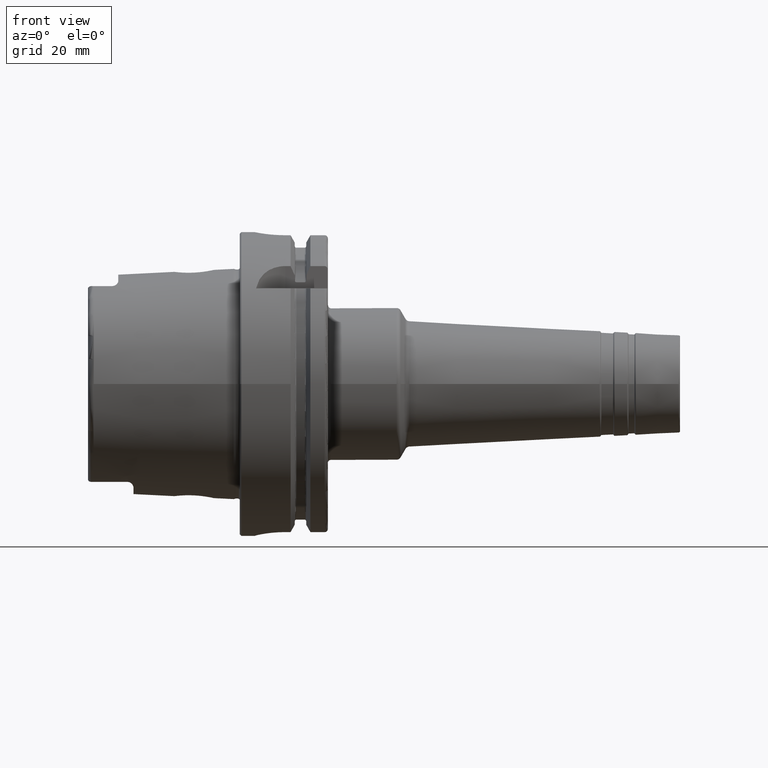
[diagram: clean part render]
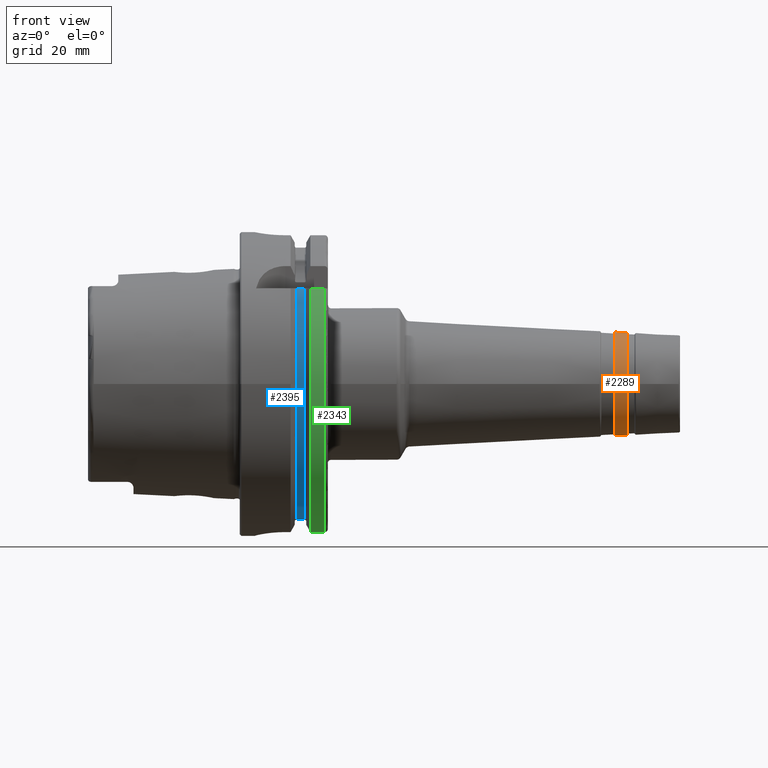
[diagram: same view with three faces highlighted in distinct colors, each labeled with its STEP entity id]
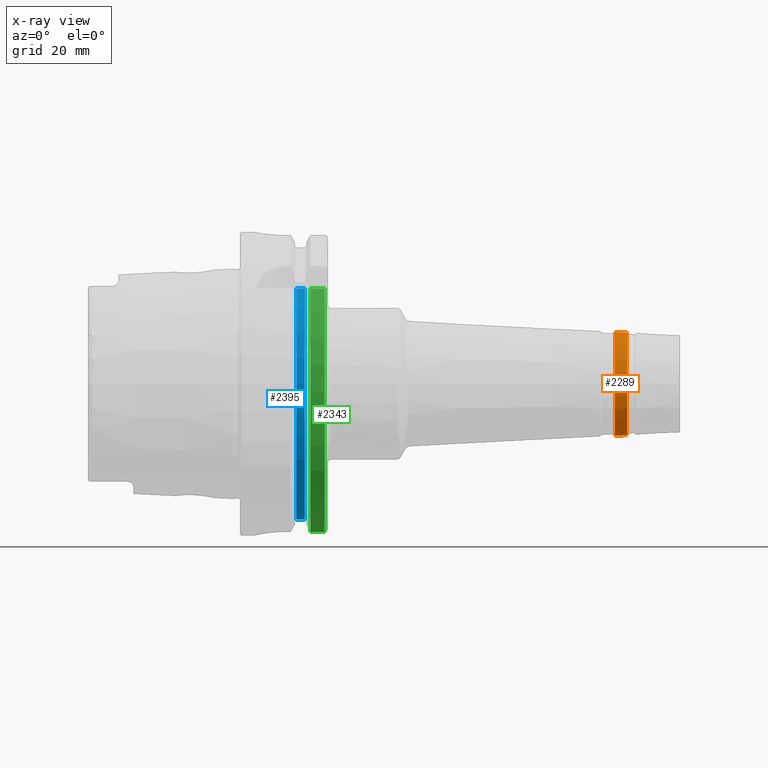
[diagram: x-ray of the same camera — body ghosted, the three highlighted faces saturated]
A machine part, front view with three faces highlighted in distinct colors.
The next image is the same camera in x-ray (body ghosted, the three faces saturated) — at least one of them is partly hidden behind the body in this view.
Their STEP definitions:

[orange] entity #2289 — the highlighted conical surface has half-angle 3 deg.
#196=LINE('',#3666,#308);
#308=VECTOR('',#2936,17.0202570867172);
#410=CONICAL_SURFACE('',#2508,17.0202570867172,0.0523598775598303);
#448=FACE_OUTER_BOUND('',#585,.T.);
#585=EDGE_LOOP('',(#1631,#1632,#1633,#1634,#1635,#1636));
#765=CIRCLE('',#2506,16.9166117566925);
#766=CIRCLE('',#2507,16.9166117566925);
#767=CIRCLE('',#2509,17.1239024167419);
#768=CIRCLE('',#2510,17.1239024167419);
#943=VERTEX_POINT('',#3659);
#944=VERTEX_POINT('',#3661);
#945=VERTEX_POINT('',#3665);
#946=VERTEX_POINT('',#3667);
#1204=EDGE_CURVE('',#943,#944,#765,.T.);
#1205=EDGE_CURVE('',#944,#943,#766,.T.);
#1206=EDGE_CURVE('',#944,#945,#196,.T.);
#1207=EDGE_CURVE('',#946,#945,#767,.T.);
#1208=EDGE_CURVE('',#945,#946,#768,.T.);
#1631=ORIENTED_EDGE('',*,*,#1205,.F.);
#1632=ORIENTED_EDGE('',*,*,#1206,.T.);
#1633=ORIENTED_EDGE('',*,*,#1207,.F.);
#1634=ORIENTED_EDGE('',*,*,#1208,.F.);
#1635=ORIENTED_EDGE('',*,*,#1206,.F.);
#1636=ORIENTED_EDGE('',*,*,#1204,.F.);
#2289=ADVANCED_FACE('',(#448),#410,.T.);
#2506=AXIS2_PLACEMENT_3D('',#3662,#2930,#2931);
#2507=AXIS2_PLACEMENT_3D('',#3663,#2932,#2933);
#2508=AXIS2_PLACEMENT_3D('',#3664,#2934,#2935);
#2509=AXIS2_PLACEMENT_3D('',#3668,#2937,#2938);
#2510=AXIS2_PLACEMENT_3D('',#3669,#2939,#2940);
#2930=DIRECTION('center_axis',(1.,0.,0.));
#2931=DIRECTION('ref_axis',(0.,-1.,3.06161699786838E-17));
#2932=DIRECTION('center_axis',(1.,0.,0.));
#2933=DIRECTION('ref_axis',(0.,-1.,3.06161699786838E-17));
#2934=DIRECTION('center_axis',(-1.,0.,0.));
#2935=DIRECTION('ref_axis',(0.,1.,0.));
#2936=DIRECTION('',(-0.998629534754574,-0.0523359562429442,-6.40930612932376E-18));
#2937=DIRECTION('center_axis',(-1.,0.,0.));
#2938=DIRECTION('ref_axis',(0.,-1.,3.06161699786838E-17));
#2939=DIRECTION('center_axis',(-1.,0.,0.));
#2940=DIRECTION('ref_axis',(0.,-1.,3.06161699786838E-17));
#3659=CARTESIAN_POINT('',(127.510005780972,-2.07168744402519E-15,16.9166117566925));
#3661=CARTESIAN_POINT('',(127.510005780972,-16.9166117566925,-2.07168744402519E-15));
#3662=CARTESIAN_POINT('Origin',(127.510005780972,0.,-2.58960930503149E-15));
#3663=CARTESIAN_POINT('Origin',(127.510005780972,0.,-2.58960930503149E-15));
#3664=CARTESIAN_POINT('Origin',(125.532335071726,0.,0.));
#3665=CARTESIAN_POINT('',(123.55466436248,-17.1239024167419,-2.09707322835746E-15));
#3666=CARTESIAN_POINT('',(125.532335071726,-17.0202570867172,-2.08438033619133E-15));
#3667=CARTESIAN_POINT('',(123.55466436248,-2.09707322835746E-15,17.1239024167419));
#3668=CARTESIAN_POINT('Origin',(123.55466436248,0.,-2.62134153544683E-15));
#3669=CARTESIAN_POINT('Origin',(123.55466436248,0.,-2.62134153544683E-15));

[blue] entity #2395 — the highlighted cylindrical surface (partial cylindrical patch) has radius 46 mm, axis along (1, 0, 0).
#175=CYLINDRICAL_SURFACE('',#2735,46.);
#239=LINE('',#4590,#351);
#259=LINE('',#4831,#371);
#351=VECTOR('',#3141,10.);
#371=VECTOR('',#3213,10.);
#554=FACE_OUTER_BOUND('',#700,.T.);
#700=EDGE_LOOP('',(#2205,#2206,#2207,#2208));
#881=CIRCLE('',#2734,46.);
#882=CIRCLE('',#2736,46.);
#1041=VERTEX_POINT('',#4578);
#1042=VERTEX_POINT('',#4589);
#1080=VERTEX_POINT('',#4819);
#1081=VERTEX_POINT('',#4830);
#1336=EDGE_CURVE('',#1042,#1041,#239,.T.);
#1389=EDGE_CURVE('',#1081,#1080,#259,.T.);
#1487=EDGE_CURVE('',#1041,#1081,#881,.T.);
#1488=EDGE_CURVE('',#1042,#1080,#882,.T.);
#2205=ORIENTED_EDGE('',*,*,#1336,.T.);
#2206=ORIENTED_EDGE('',*,*,#1487,.T.);
#2207=ORIENTED_EDGE('',*,*,#1389,.T.);
#2208=ORIENTED_EDGE('',*,*,#1488,.F.);
#2395=ADVANCED_FACE('',(#554),#175,.T.);
#2734=AXIS2_PLACEMENT_3D('',#5109,#3477,#3478);
#2735=AXIS2_PLACEMENT_3D('',#5110,#3479,#3480);
#2736=AXIS2_PLACEMENT_3D('',#5111,#3481,#3482);
#3141=DIRECTION('',(-1.,0.,0.));
#3213=DIRECTION('',(1.,0.,0.));
#3477=DIRECTION('center_axis',(1.,0.,0.));
#3478=DIRECTION('ref_axis',(0.,0.,-1.));
#3479=DIRECTION('center_axis',(1.,0.,0.));
#3480=DIRECTION('ref_axis',(0.,-0.958952815598936,-0.283565684550992));
#3481=DIRECTION('center_axis',(1.,0.,0.));
#3482=DIRECTION('ref_axis',(0.,0.,-1.));
#4578=CARTESIAN_POINT('',(18.625,-33.5223805837235,31.5));
#4589=CARTESIAN_POINT('',(21.375,-33.5223805837235,31.5));
#4590=CARTESIAN_POINT('',(20.,-33.5223805837235,31.5));
#4819=CARTESIAN_POINT('',(21.375,-11.,-44.6654228682546));
#4830=CARTESIAN_POINT('',(18.625,-11.,-44.6654228682546));
#4831=CARTESIAN_POINT('',(20.,-11.,-44.6654228682546));
#5109=CARTESIAN_POINT('Origin',(18.625,0.,0.));
#5110=CARTESIAN_POINT('Origin',(20.,0.,0.));
#5111=CARTESIAN_POINT('Origin',(21.375,0.,0.));

[green] entity #2343 — the highlighted cylindrical surface (partial cylindrical patch) has radius 50 mm, axis along (1, 0, 0).
#162=CYLINDRICAL_SURFACE('',#2628,50.);
#241=LINE('',#4609,#353);
#257=LINE('',#4812,#369);
#353=VECTOR('',#3143,10.);
#369=VECTOR('',#3211,10.);
#502=FACE_OUTER_BOUND('',#644,.T.);
#644=EDGE_LOOP('',(#1955,#1956,#1957,#1958));
#825=CIRCLE('',#2625,50.);
#827=CIRCLE('',#2629,50.);
#1045=VERTEX_POINT('',#4604);
#1046=VERTEX_POINT('',#4608);
#1076=VERTEX_POINT('',#4800);
#1077=VERTEX_POINT('',#4811);
#1340=EDGE_CURVE('',#1046,#1045,#241,.T.);
#1385=EDGE_CURVE('',#1077,#1076,#257,.T.);
#1402=EDGE_CURVE('',#1046,#1076,#825,.T.);
#1405=EDGE_CURVE('',#1045,#1077,#827,.T.);
#1955=ORIENTED_EDGE('',*,*,#1340,.T.);
#1956=ORIENTED_EDGE('',*,*,#1405,.T.);
#1957=ORIENTED_EDGE('',*,*,#1385,.T.);
#1958=ORIENTED_EDGE('',*,*,#1402,.F.);
#2343=ADVANCED_FACE('',(#502),#162,.T.);
#2625=AXIS2_PLACEMENT_3D('',#4876,#3238,#3239);
#2628=AXIS2_PLACEMENT_3D('',#4881,#3245,#3246);
#2629=AXIS2_PLACEMENT_3D('',#4882,#3247,#3248);
#3143=DIRECTION('',(-1.,0.,0.));
#3211=DIRECTION('',(1.,0.,0.));
#3238=DIRECTION('center_axis',(1.,0.,0.));
#3239=DIRECTION('ref_axis',(0.,0.,-1.));
#3245=DIRECTION('center_axis',(1.,0.,0.));
#3246=DIRECTION('ref_axis',(0.,-0.94483222014474,-0.327554691275153));
#3247=DIRECTION('center_axis',(1.,0.,0.));
#3248=DIRECTION('ref_axis',(0.,0.,-1.));
#4604=CARTESIAN_POINT('',(23.2620290209214,-38.8297566307078,31.5));
#4608=CARTESIAN_POINT('',(28.,-38.8297566307078,31.5));
#4609=CARTESIAN_POINT('',(25.6310145104607,-38.8297566307078,31.5));
#4800=CARTESIAN_POINT('',(28.,-11.,-48.7749935930288));
#4811=CARTESIAN_POINT('',(23.2620290209214,-11.,-48.7749935930288));
#4812=CARTESIAN_POINT('',(25.6310145104607,-11.,-48.7749935930288));
#4876=CARTESIAN_POINT('Origin',(28.,0.,0.));
#4881=CARTESIAN_POINT('Origin',(25.6310145104607,0.,0.));
#4882=CARTESIAN_POINT('Origin',(23.2620290209214,0.,0.));